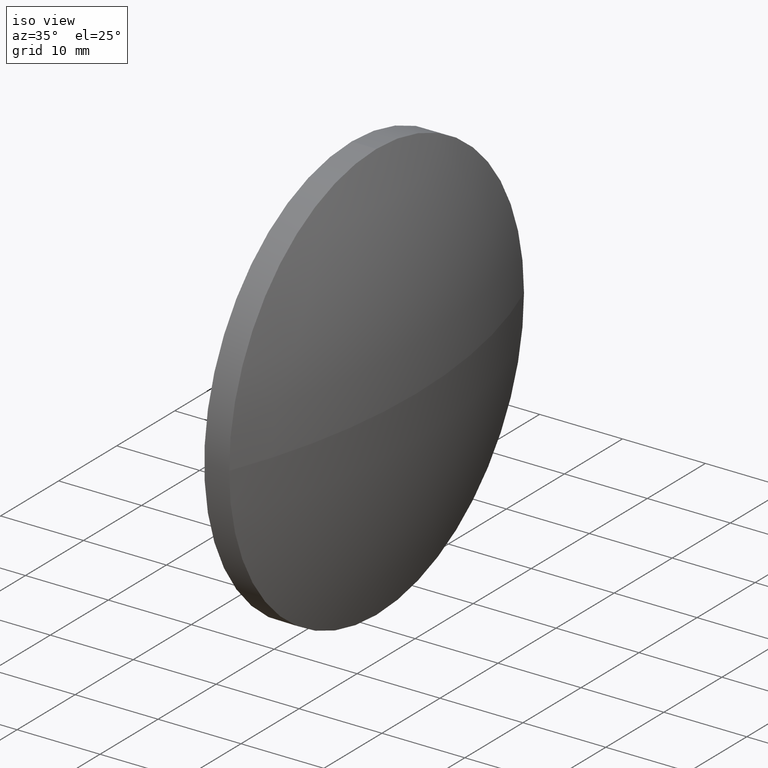
[diagram: clean part render]
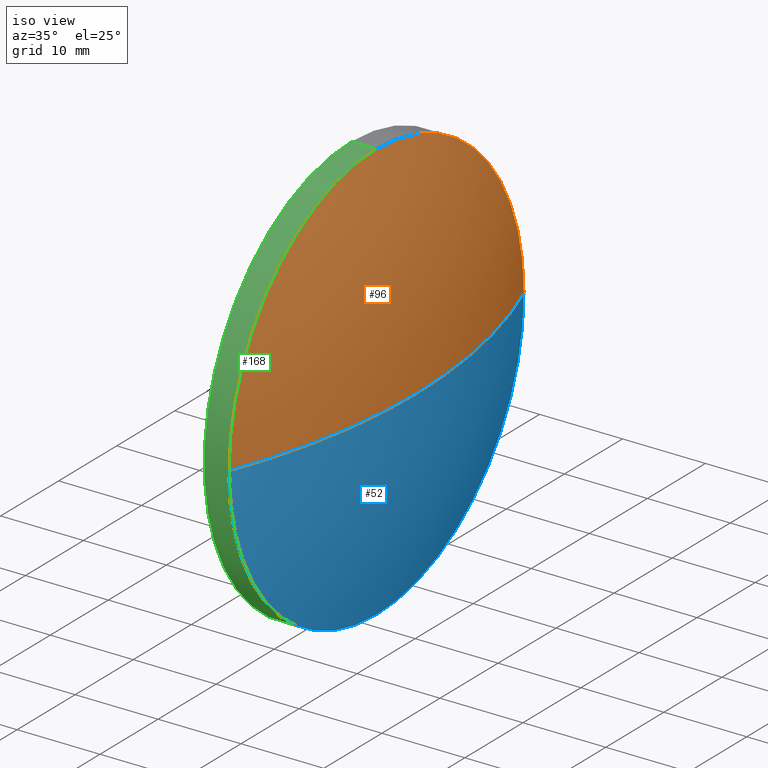
[diagram: same view with three faces highlighted in distinct colors, each labeled with its STEP entity id]
A machine part, iso view with three faces highlighted in distinct colors.
Their STEP definitions:

[orange] entity #96 — the highlighted spherical surface has radius 69.6042 mm.
#3 = AXIS2_PLACEMENT_3D ( 'NONE', #95, #123, #60 ) ;
#5 = DIRECTION ( 'NONE',  ( 1.000000000000000000, 0.0000000000000000000, 0.0000000000000000000 ) ) ;
#7 = CARTESIAN_POINT ( 'NONE',  ( 235.0208200792423800, 130.4671098528243900, 0.0000000000000000000 ) ) ;
#11 = VERTEX_POINT ( 'NONE', #132 ) ;
#27 = ORIENTED_EDGE ( 'NONE', *, *, #61, .F. ) ;
#32 = CARTESIAN_POINT ( 'NONE',  ( 170.2166534125759400, 130.4671098528243900, 0.0000000000000000000 ) ) ;
#33 = DIRECTION ( 'NONE',  ( 0.0000000000000000000, 1.224646799147353200E-016, -1.000000000000000000 ) ) ;
#43 = DIRECTION ( 'NONE',  ( -1.000000000000000000, -0.0000000000000000000, -0.0000000000000000000 ) ) ;
#49 = CIRCLE ( 'NONE', #115, 69.60416666666644400 ) ;
#54 = CARTESIAN_POINT ( 'NONE',  ( 239.8208200792423700, 130.4671098528243900, 0.0000000000000000000 ) ) ;
#55 = ORIENTED_EDGE ( 'NONE', *, *, #164, .F. ) ;
#60 = DIRECTION ( 'NONE',  ( 0.0000000000000000000, 0.0000000000000000000, 1.000000000000000000 ) ) ;
#61 = EDGE_CURVE ( 'NONE', #11, #116, #169, .T. ) ;
#71 = DIRECTION ( 'NONE',  ( -0.0000000000000000000, 0.0000000000000000000, -1.000000000000000000 ) ) ;
#74 = DIRECTION ( 'NONE',  ( 0.0000000000000000000, 1.000000000000000000, 1.224646799147353200E-016 ) ) ;
#75 = CARTESIAN_POINT ( 'NONE',  ( 170.2166534125759400, 130.4671098528243900, 0.0000000000000000000 ) ) ;
#79 = AXIS2_PLACEMENT_3D ( 'NONE', #7, #43, #152 ) ;
#84 = AXIS2_PLACEMENT_3D ( 'NONE', #75, #71, #143 ) ;
#85 = VERTEX_POINT ( 'NONE', #54 ) ;
#88 = EDGE_LOOP ( 'NONE', ( #55, #175, #171, #27 ) ) ;
#95 = CARTESIAN_POINT ( 'NONE',  ( 235.0208200792423800, 130.4671098528243900, 0.0000000000000000000 ) ) ;
#96 = ADVANCED_FACE ( 'NONE', ( #131 ), #158, .T. ) ;
#99 = VERTEX_POINT ( 'NONE', #150 ) ;
#106 = DIRECTION ( 'NONE',  ( -0.0000000000000000000, 0.0000000000000000000, 1.000000000000000000 ) ) ;
#107 = CARTESIAN_POINT ( 'NONE',  ( 170.2166534125759400, 130.4671098528243900, 0.0000000000000000000 ) ) ;
#115 = AXIS2_PLACEMENT_3D ( 'NONE', #32, #106, #5 ) ;
#116 = VERTEX_POINT ( 'NONE', #140 ) ;
#117 = EDGE_CURVE ( 'NONE', #85, #99, #49, .T. ) ;
#123 = DIRECTION ( 'NONE',  ( -1.000000000000000000, -0.0000000000000000000, -0.0000000000000000000 ) ) ;
#131 = FACE_OUTER_BOUND ( 'NONE', #88, .T. ) ;
#132 = CARTESIAN_POINT ( 'NONE',  ( 235.0208200792423600, 105.0671098528244200, -3.110602869834274900E-015 ) ) ;
#133 = AXIS2_PLACEMENT_3D ( 'NONE', #107, #33, #74 ) ;
#136 = CIRCLE ( 'NONE', #79, 25.40000000000000600 ) ;
#139 = EDGE_CURVE ( 'NONE', #116, #99, #136, .T. ) ;
#140 = CARTESIAN_POINT ( 'NONE',  ( 235.0208200792423800, 130.4671098528243900, 25.40000000000000600 ) ) ;
#143 = DIRECTION ( 'NONE',  ( 0.0000000000000000000, 1.000000000000000000, 0.0000000000000000000 ) ) ;
#150 = CARTESIAN_POINT ( 'NONE',  ( 235.0208200792423600, 155.8671098528243700, 0.0000000000000000000 ) ) ;
#152 = DIRECTION ( 'NONE',  ( 0.0000000000000000000, 0.0000000000000000000, 1.000000000000000000 ) ) ;
#158 = SPHERICAL_SURFACE ( 'NONE', #84, 69.60416666666644400 ) ;
#164 = EDGE_CURVE ( 'NONE', #85, #11, #170, .T. ) ;
#169 = CIRCLE ( 'NONE', #3, 25.40000000000000600 ) ;
#170 = CIRCLE ( 'NONE', #133, 69.60416666666644400 ) ;
#171 = ORIENTED_EDGE ( 'NONE', *, *, #139, .F. ) ;
#175 = ORIENTED_EDGE ( 'NONE', *, *, #117, .T. ) ;

[blue] entity #52 — the highlighted spherical surface has radius 69.6042 mm.
#5 = DIRECTION ( 'NONE',  ( 1.000000000000000000, 0.0000000000000000000, 0.0000000000000000000 ) ) ;
#11 = VERTEX_POINT ( 'NONE', #132 ) ;
#16 = VERTEX_POINT ( 'NONE', #63 ) ;
#19 = CIRCLE ( 'NONE', #182, 25.40000000000000600 ) ;
#22 = DIRECTION ( 'NONE',  ( 0.0000000000000000000, 1.000000000000000000, 0.0000000000000000000 ) ) ;
#24 = CARTESIAN_POINT ( 'NONE',  ( 235.0208200792423800, 130.4671098528243900, 0.0000000000000000000 ) ) ;
#32 = CARTESIAN_POINT ( 'NONE',  ( 170.2166534125759400, 130.4671098528243900, 0.0000000000000000000 ) ) ;
#33 = DIRECTION ( 'NONE',  ( 0.0000000000000000000, 1.224646799147353200E-016, -1.000000000000000000 ) ) ;
#45 = ORIENTED_EDGE ( 'NONE', *, *, #164, .T. ) ;
#46 = SPHERICAL_SURFACE ( 'NONE', #178, 69.60416666666644400 ) ;
#49 = CIRCLE ( 'NONE', #115, 69.60416666666644400 ) ;
#52 = ADVANCED_FACE ( 'NONE', ( #86 ), #46, .T. ) ;
#54 = CARTESIAN_POINT ( 'NONE',  ( 239.8208200792423700, 130.4671098528243900, 0.0000000000000000000 ) ) ;
#62 = ORIENTED_EDGE ( 'NONE', *, *, #117, .F. ) ;
#63 = CARTESIAN_POINT ( 'NONE',  ( 235.0208200792423800, 130.4671098528243900, -25.40000000000000600 ) ) ;
#68 = EDGE_CURVE ( 'NONE', #16, #11, #92, .T. ) ;
#70 = DIRECTION ( 'NONE',  ( -1.000000000000000000, -0.0000000000000000000, -0.0000000000000000000 ) ) ;
#72 = EDGE_LOOP ( 'NONE', ( #62, #45, #83, #141 ) ) ;
#74 = DIRECTION ( 'NONE',  ( 0.0000000000000000000, 1.000000000000000000, 1.224646799147353200E-016 ) ) ;
#83 = ORIENTED_EDGE ( 'NONE', *, *, #68, .F. ) ;
#85 = VERTEX_POINT ( 'NONE', #54 ) ;
#86 = FACE_OUTER_BOUND ( 'NONE', #72, .T. ) ;
#92 = CIRCLE ( 'NONE', #111, 25.40000000000000600 ) ;
#99 = VERTEX_POINT ( 'NONE', #150 ) ;
#106 = DIRECTION ( 'NONE',  ( -0.0000000000000000000, 0.0000000000000000000, 1.000000000000000000 ) ) ;
#107 = CARTESIAN_POINT ( 'NONE',  ( 170.2166534125759400, 130.4671098528243900, 0.0000000000000000000 ) ) ;
#111 = AXIS2_PLACEMENT_3D ( 'NONE', #24, #70, #166 ) ;
#115 = AXIS2_PLACEMENT_3D ( 'NONE', #32, #106, #5 ) ;
#117 = EDGE_CURVE ( 'NONE', #85, #99, #49, .T. ) ;
#122 = CARTESIAN_POINT ( 'NONE',  ( 235.0208200792423800, 130.4671098528243900, 0.0000000000000000000 ) ) ;
#132 = CARTESIAN_POINT ( 'NONE',  ( 235.0208200792423600, 105.0671098528244200, -3.110602869834274900E-015 ) ) ;
#133 = AXIS2_PLACEMENT_3D ( 'NONE', #107, #33, #74 ) ;
#141 = ORIENTED_EDGE ( 'NONE', *, *, #148, .F. ) ;
#142 = DIRECTION ( 'NONE',  ( 0.0000000000000000000, 0.0000000000000000000, 1.000000000000000000 ) ) ;
#148 = EDGE_CURVE ( 'NONE', #99, #16, #19, .T. ) ;
#150 = CARTESIAN_POINT ( 'NONE',  ( 235.0208200792423600, 155.8671098528243700, 0.0000000000000000000 ) ) ;
#164 = EDGE_CURVE ( 'NONE', #85, #11, #170, .T. ) ;
#166 = DIRECTION ( 'NONE',  ( 0.0000000000000000000, 0.0000000000000000000, 1.000000000000000000 ) ) ;
#170 = CIRCLE ( 'NONE', #133, 69.60416666666644400 ) ;
#178 = AXIS2_PLACEMENT_3D ( 'NONE', #186, #184, #22 ) ;
#179 = DIRECTION ( 'NONE',  ( -1.000000000000000000, -0.0000000000000000000, -0.0000000000000000000 ) ) ;
#182 = AXIS2_PLACEMENT_3D ( 'NONE', #122, #179, #142 ) ;
#184 = DIRECTION ( 'NONE',  ( -0.0000000000000000000, 0.0000000000000000000, -1.000000000000000000 ) ) ;
#186 = CARTESIAN_POINT ( 'NONE',  ( 170.2166534125759400, 130.4671098528243900, 0.0000000000000000000 ) ) ;

[green] entity #168 — the highlighted cylindrical surface (partial cylindrical patch) has radius 25.4 mm, axis along (-1, -0, -0).
#2 = VERTEX_POINT ( 'NONE', #66 ) ;
#3 = AXIS2_PLACEMENT_3D ( 'NONE', #95, #123, #60 ) ;
#6 = CARTESIAN_POINT ( 'NONE',  ( 220.3307464569769000, 130.4671098528243900, 0.0000000000000000000 ) ) ;
#10 = DIRECTION ( 'NONE',  ( -1.000000000000000000, -0.0000000000000000000, -0.0000000000000000000 ) ) ;
#11 = VERTEX_POINT ( 'NONE', #132 ) ;
#16 = VERTEX_POINT ( 'NONE', #63 ) ;
#17 = VECTOR ( 'NONE', #120, 1000.000000000000000 ) ;
#18 = ORIENTED_EDGE ( 'NONE', *, *, #68, .T. ) ;
#20 = EDGE_CURVE ( 'NONE', #57, #2, #157, .T. ) ;
#24 = CARTESIAN_POINT ( 'NONE',  ( 235.0208200792423800, 130.4671098528243900, 0.0000000000000000000 ) ) ;
#28 = EDGE_LOOP ( 'NONE', ( #93, #18, #130, #159, #153 ) ) ;
#29 = EDGE_CURVE ( 'NONE', #16, #57, #113, .T. ) ;
#35 = VECTOR ( 'NONE', #135, 1000.000000000000000 ) ;
#39 = DIRECTION ( 'NONE',  ( -1.000000000000000000, -0.0000000000000000000, -0.0000000000000000000 ) ) ;
#56 = AXIS2_PLACEMENT_3D ( 'NONE', #6, #10, #108 ) ;
#57 = VERTEX_POINT ( 'NONE', #65 ) ;
#60 = DIRECTION ( 'NONE',  ( 0.0000000000000000000, 0.0000000000000000000, 1.000000000000000000 ) ) ;
#61 = EDGE_CURVE ( 'NONE', #11, #116, #169, .T. ) ;
#63 = CARTESIAN_POINT ( 'NONE',  ( 235.0208200792423800, 130.4671098528243900, -25.40000000000000600 ) ) ;
#65 = CARTESIAN_POINT ( 'NONE',  ( 232.0208200792423800, 130.4671098528243900, -25.40000000000000600 ) ) ;
#66 = CARTESIAN_POINT ( 'NONE',  ( 232.0208200792423800, 130.4671098528243900, 25.40000000000000600 ) ) ;
#68 = EDGE_CURVE ( 'NONE', #16, #11, #92, .T. ) ;
#70 = DIRECTION ( 'NONE',  ( -1.000000000000000000, -0.0000000000000000000, -0.0000000000000000000 ) ) ;
#81 = FACE_OUTER_BOUND ( 'NONE', #28, .T. ) ;
#92 = CIRCLE ( 'NONE', #111, 25.40000000000000600 ) ;
#93 = ORIENTED_EDGE ( 'NONE', *, *, #29, .F. ) ;
#95 = CARTESIAN_POINT ( 'NONE',  ( 235.0208200792423800, 130.4671098528243900, 0.0000000000000000000 ) ) ;
#100 = CARTESIAN_POINT ( 'NONE',  ( 232.0208200792423800, 130.4671098528243900, 0.0000000000000000000 ) ) ;
#102 = AXIS2_PLACEMENT_3D ( 'NONE', #100, #39, #114 ) ;
#108 = DIRECTION ( 'NONE',  ( 0.0000000000000000000, 0.0000000000000000000, 1.000000000000000000 ) ) ;
#111 = AXIS2_PLACEMENT_3D ( 'NONE', #24, #70, #166 ) ;
#113 = LINE ( 'NONE', #147, #35 ) ;
#114 = DIRECTION ( 'NONE',  ( 0.0000000000000000000, 0.0000000000000000000, 1.000000000000000000 ) ) ;
#116 = VERTEX_POINT ( 'NONE', #140 ) ;
#118 = CYLINDRICAL_SURFACE ( 'NONE', #56, 25.40000000000000600 ) ;
#120 = DIRECTION ( 'NONE',  ( -1.000000000000000000, -0.0000000000000000000, -0.0000000000000000000 ) ) ;
#123 = DIRECTION ( 'NONE',  ( -1.000000000000000000, -0.0000000000000000000, -0.0000000000000000000 ) ) ;
#130 = ORIENTED_EDGE ( 'NONE', *, *, #61, .T. ) ;
#132 = CARTESIAN_POINT ( 'NONE',  ( 235.0208200792423600, 105.0671098528244200, -3.110602869834274900E-015 ) ) ;
#135 = DIRECTION ( 'NONE',  ( -1.000000000000000000, -0.0000000000000000000, -0.0000000000000000000 ) ) ;
#140 = CARTESIAN_POINT ( 'NONE',  ( 235.0208200792423800, 130.4671098528243900, 25.40000000000000600 ) ) ;
#147 = CARTESIAN_POINT ( 'NONE',  ( 220.3307464569769000, 130.4671098528243900, -25.40000000000000600 ) ) ;
#153 = ORIENTED_EDGE ( 'NONE', *, *, #20, .F. ) ;
#157 = CIRCLE ( 'NONE', #102, 25.40000000000000600 ) ;
#159 = ORIENTED_EDGE ( 'NONE', *, *, #167, .T. ) ;
#163 = LINE ( 'NONE', #180, #17 ) ;
#166 = DIRECTION ( 'NONE',  ( 0.0000000000000000000, 0.0000000000000000000, 1.000000000000000000 ) ) ;
#167 = EDGE_CURVE ( 'NONE', #116, #2, #163, .T. ) ;
#168 = ADVANCED_FACE ( 'NONE', ( #81 ), #118, .T. ) ;
#169 = CIRCLE ( 'NONE', #3, 25.40000000000000600 ) ;
#180 = CARTESIAN_POINT ( 'NONE',  ( 220.3307464569769000, 130.4671098528243900, 25.40000000000000600 ) ) ;